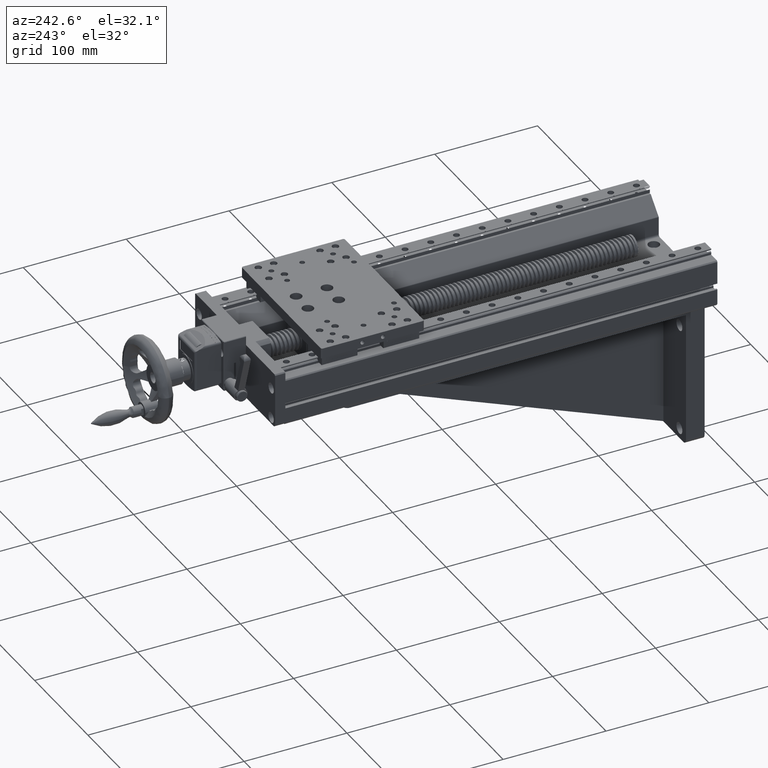
[diagram: clean part render]
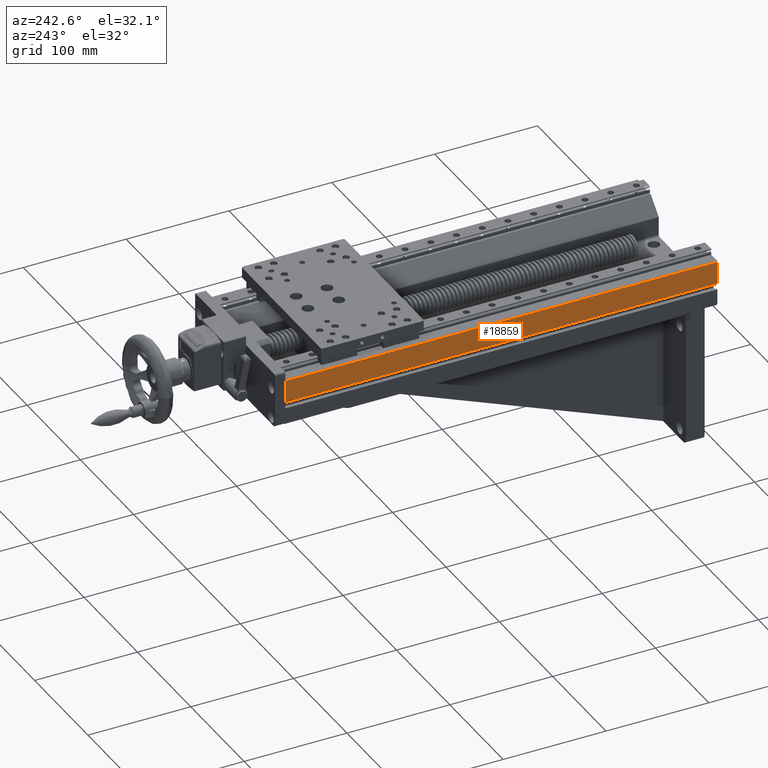
[diagram: same view with one face highlighted and labeled with its STEP entity id]
A machine part, auxiliary view. The second image highlights one B-rep face of the part: STEP entity #18859.
In plain terms, the highlighted planar face has unit normal (-1, -0, -0).
Its self-contained STEP definition (entity closure, byte-faithful):
#216 = EDGE_CURVE ( 'NONE', #37931, #26238, #26735, .T. ) ;
#449 = LINE ( 'NONE', #47283, #49795 ) ;
#1412 = EDGE_LOOP ( 'NONE', ( #43537, #37103, #28797, #38016 ) ) ;
#2819 = CARTESIAN_POINT ( 'NONE',  ( -157.1853518124606239, -185.9865353911121133, 98.00000000000075318 ) ) ;
#2939 = CARTESIAN_POINT ( 'NONE',  ( -157.1853518124607376, 234.0134646088877162, 98.00000000000075318 ) ) ;
#4430 = VECTOR ( 'NONE', #9042, 1000.000000000000000 ) ;
#6246 = CARTESIAN_POINT ( 'NONE',  ( -157.1853518124623008, 234.0134646088877162, 120.0000000000009948 ) ) ;
#6286 = CARTESIAN_POINT ( 'NONE',  ( -157.1853518124623008, 234.0134646088877162, 120.0000000000009948 ) ) ;
#6696 = FACE_OUTER_BOUND ( 'NONE', #1412, .T. ) ;
#7068 = VECTOR ( 'NONE', #28393, 1000.000000000000000 ) ;
#9042 = DIRECTION ( 'NONE',  ( 7.044781059039909763E-14, -2.223285094848692217E-16, -1.000000000000000000 ) ) ;
#11503 = CARTESIAN_POINT ( 'NONE',  ( -157.1853518124623008, 234.0134646088877162, 120.0000000000009948 ) ) ;
#13018 = CARTESIAN_POINT ( 'NONE',  ( -157.1853518124607376, 234.0134646088877162, 98.00000000000075318 ) ) ;
#13552 = VERTEX_POINT ( 'NONE', #2939 ) ;
#13604 = DIRECTION ( 'NONE',  ( 2.355720492930367857E-16, -1.000000000000000000, 2.223285094848859850E-16 ) ) ;
#16834 = EDGE_CURVE ( 'NONE', #21736, #37931, #48345, .T. ) ;
#18859 = ADVANCED_FACE ( 'NONE', ( #6696 ), #23100, .T. ) ;
#21736 = VERTEX_POINT ( 'NONE', #6246 ) ;
#22971 = CARTESIAN_POINT ( 'NONE',  ( -157.1853518124621871, -185.9865353911121133, 120.0000000000009948 ) ) ;
#23100 = PLANE ( 'NONE',  #31313 ) ;
#23649 = DIRECTION ( 'NONE',  ( 7.044781059039909763E-14, -2.223285094848692217E-16, -1.000000000000000000 ) ) ;
#26238 = VERTEX_POINT ( 'NONE', #2819 ) ;
#26735 = LINE ( 'NONE', #22971, #4430 ) ;
#27418 = LINE ( 'NONE', #13018, #7068 ) ;
#28393 = DIRECTION ( 'NONE',  ( 2.355720492930367857E-16, -1.000000000000000000, 2.223285094848859850E-16 ) ) ;
#28797 = ORIENTED_EDGE ( 'NONE', *, *, #44968, .T. ) ;
#31313 = AXIS2_PLACEMENT_3D ( 'NONE', #11503, #37413, #33897 ) ;
#33897 = DIRECTION ( 'NONE',  ( 7.044781059039909763E-14, -2.223285094848692217E-16, -1.000000000000000000 ) ) ;
#37103 = ORIENTED_EDGE ( 'NONE', *, *, #16834, .F. ) ;
#37413 = DIRECTION ( 'NONE',  ( -1.000000000000000000, -2.364394110310442205E-16, -7.044781059039909763E-14 ) ) ;
#37931 = VERTEX_POINT ( 'NONE', #45326 ) ;
#38016 = ORIENTED_EDGE ( 'NONE', *, *, #44018, .T. ) ;
#43537 = ORIENTED_EDGE ( 'NONE', *, *, #216, .F. ) ;
#44018 = EDGE_CURVE ( 'NONE', #13552, #26238, #27418, .T. ) ;
#44968 = EDGE_CURVE ( 'NONE', #21736, #13552, #449, .T. ) ;
#45326 = CARTESIAN_POINT ( 'NONE',  ( -157.1853518124621871, -185.9865353911121133, 120.0000000000009948 ) ) ;
#46174 = VECTOR ( 'NONE', #13604, 1000.000000000000000 ) ;
#47283 = CARTESIAN_POINT ( 'NONE',  ( -157.1853518124623008, 234.0134646088877162, 120.0000000000009948 ) ) ;
#48345 = LINE ( 'NONE', #6286, #46174 ) ;
#49795 = VECTOR ( 'NONE', #23649, 1000.000000000000000 ) ;